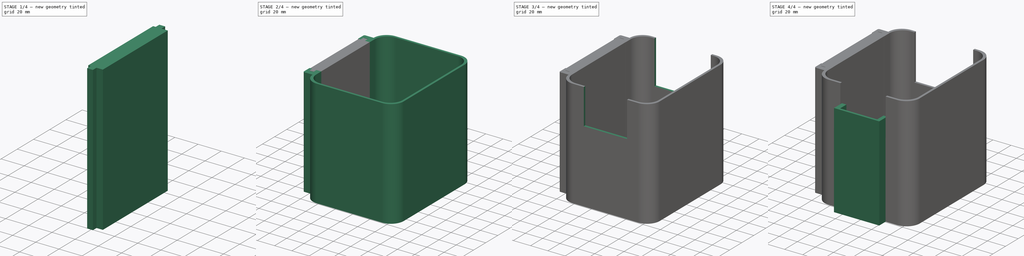
[diagram: build sequence overview — one tinted view per stage of 4, left to right]
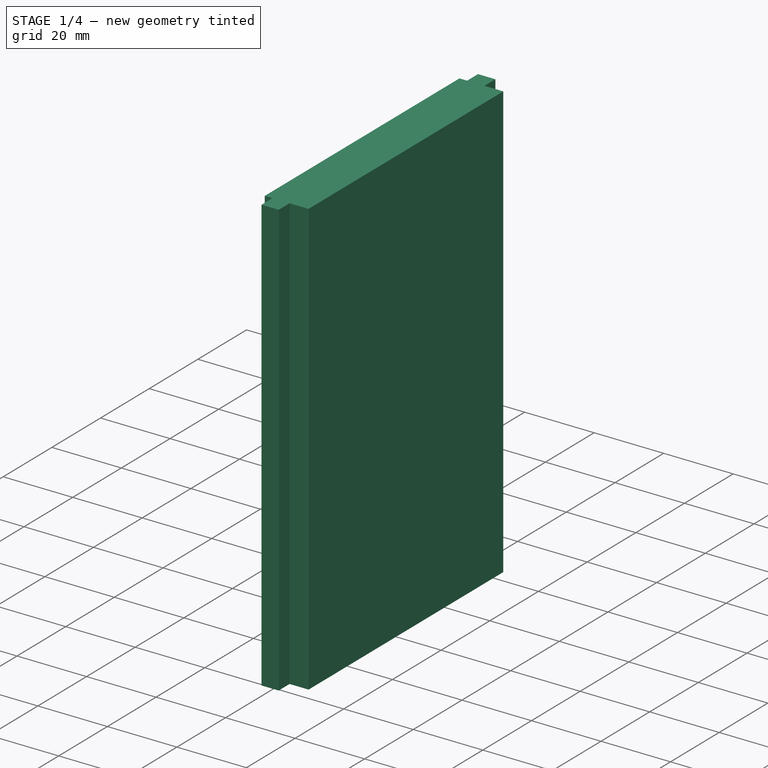
[diagram: stage 1 of 4 — iso view after this stage's code; geometry added in this stage tinted green]
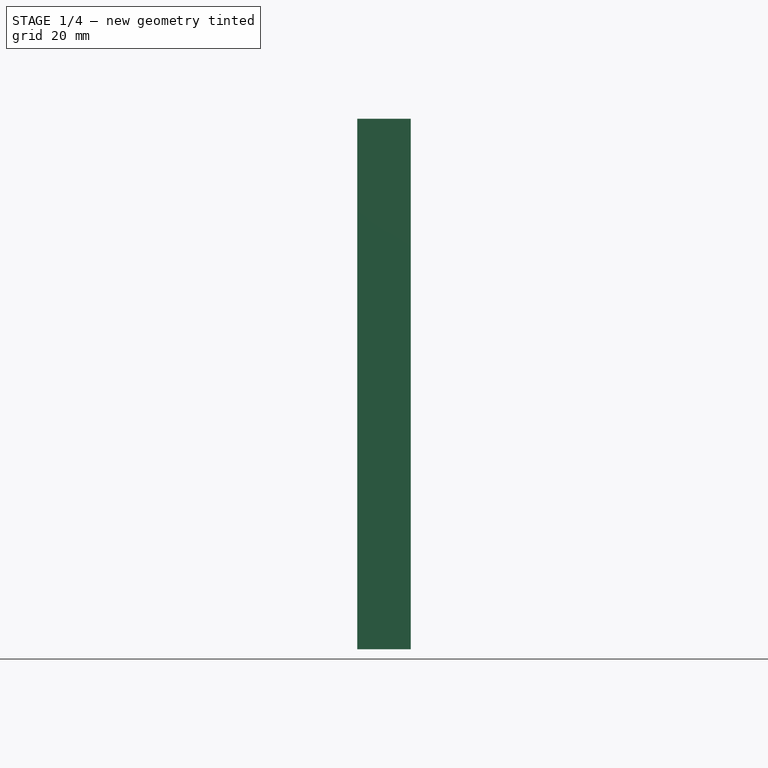
[diagram: stage 1 of 4 — front view after this stage's code; geometry added in this stage tinted green]
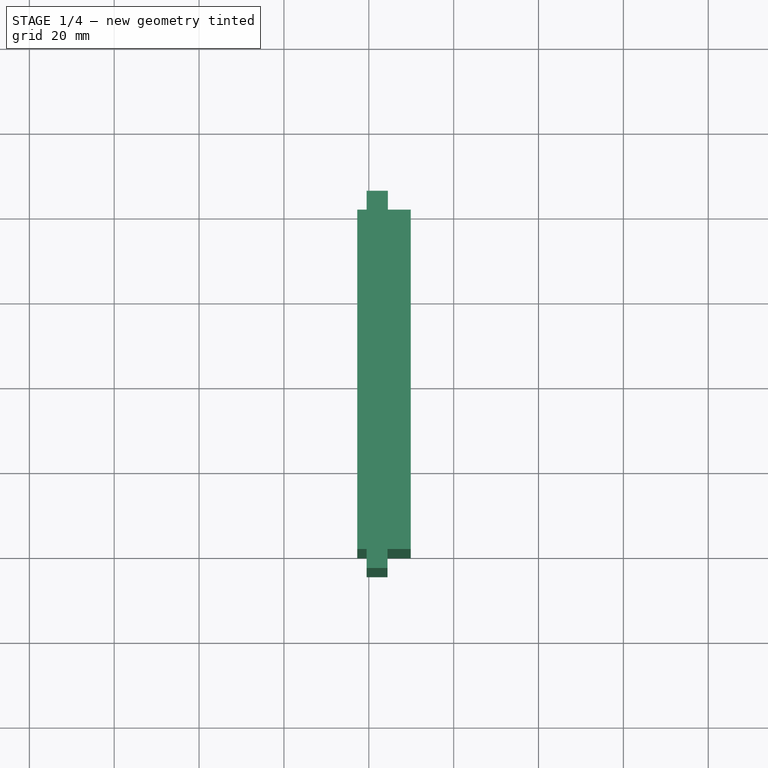
[diagram: stage 1 of 4 — top view after this stage's code; geometry added in this stage tinted green]
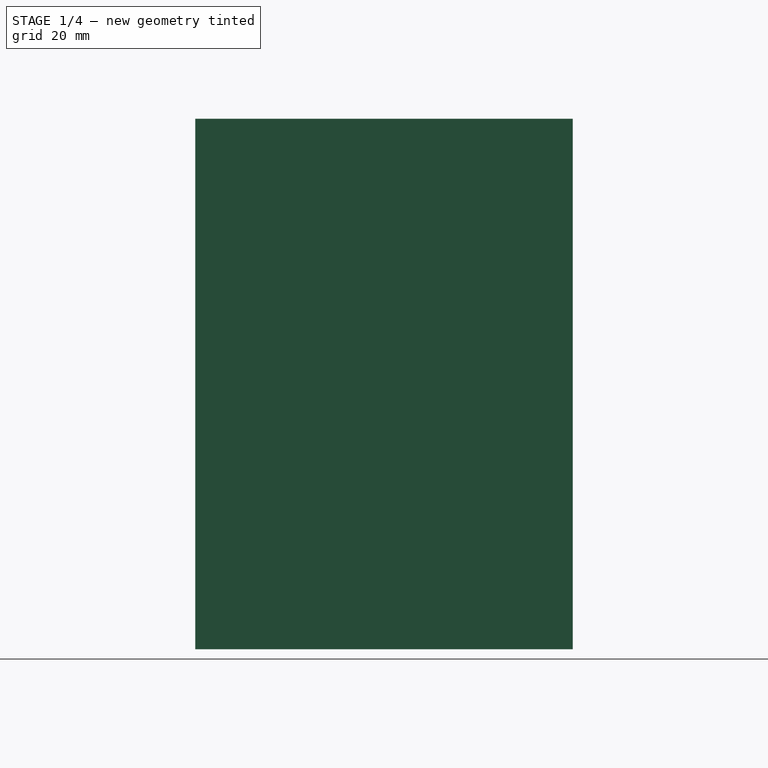
[diagram: stage 1 of 4 — right view after this stage's code; geometry added in this stage tinted green]
FCSTD DOCUMENT  (FreeCAD 1.0R39109 (Git))
Label: protection of reactor+fan_v2
License: All rights reserved
LicenseURL: http://en.wikipedia.org/wiki/All_rights_reserved
objects: Sketcher::SketchObject×9, PartDesign::Pad×5, PartDesign::Pocket×4, PartDesign::Body×2, Part::Feature×2, Part::Refine×1, Part::FeaturePython×1
note: 51 computed .brp shape members not serialized (recipe doc carries the construction recipe); baked Part::Feature solids carry a one-line shape summary decoded from their .brp

FEATURE [PartDesign::Body] Body
  AllowCompound = false
  Group = -> [Sketch,Pad,Sketch001,Pad001,Sketch002,Pocket,Sketch003,Pocket001,Sketch005,Pocket002,Sketch006,Pocket003,Sketch007,Pad003,Sketch009,Pad004]
  Origin = -> Origin
  Tip = -> Pad004
FEATURE [Part::Feature] Body002
  shape: bbox 116 x 140 x 125 mm, 88 faces (baked)
FEATURE [Part::Refine] Body003
  Source = -> Body002
FEATURE [Sketcher::SketchObject] Sketch010
  ArcFitTolerance = 1e-06
  AttachmentSupport = -> [XY_Plane001]
  FullyConstrained = false
  MakeInternals = false
  MapMode = 5
  sketch-geometry (4):
    g0: LineSegment StartX=-62.7297 StartY=44.4648 StartZ=0 EndX=-62.7297 EndY=-44.4755 EndZ=0
    g1: LineSegment StartX=-62.7297 StartY=-44.4755 StartZ=0 EndX=-50.1092 EndY=-44.4755 EndZ=0
    g2: LineSegment StartX=-50.1092 StartY=-44.4755 StartZ=0 EndX=-50.1092 EndY=44.4648 EndZ=0
    g3: LineSegment StartX=-50.1092 StartY=44.4648 StartZ=0 EndX=-62.7297 EndY=44.4648 EndZ=0
  constraints (8):
    c: Coincident(g0,g1)
    c: Coincident(g1,g2)
    c: Coincident(g2,g3)
    c: Coincident(g3,g0)
    c: Vertical(g0)
    c: Vertical(g2)
    c: Horizontal(g1)
    c: Horizontal(g3)
FEATURE [PartDesign::Pad] Pad005
  Direction = (0,0,1)
  Length = 125
  Length2 = 10
  Profile = -> Sketch010
  ReferenceAxis = -> Sketch010 [N_Axis]
  Suppressed = false
  Type = 0
FEATURE [PartDesign::Body] Body004
  AllowCompound = false
  Group = -> [Sketch010,Pad005]
  Origin = -> Origin001
  Tip = -> Pad005
FEATURE [Part::Feature] Body005
  shape: bbox 116 x 140 x 125 mm, 81 faces (baked)
FEATURE [Part::FeaturePython] Cutout  # WARN: FeaturePython — macro-defined, semantics opaque (R4)
  Base = -> Body004
  Tolerance = 0
  Tool = -> Body005
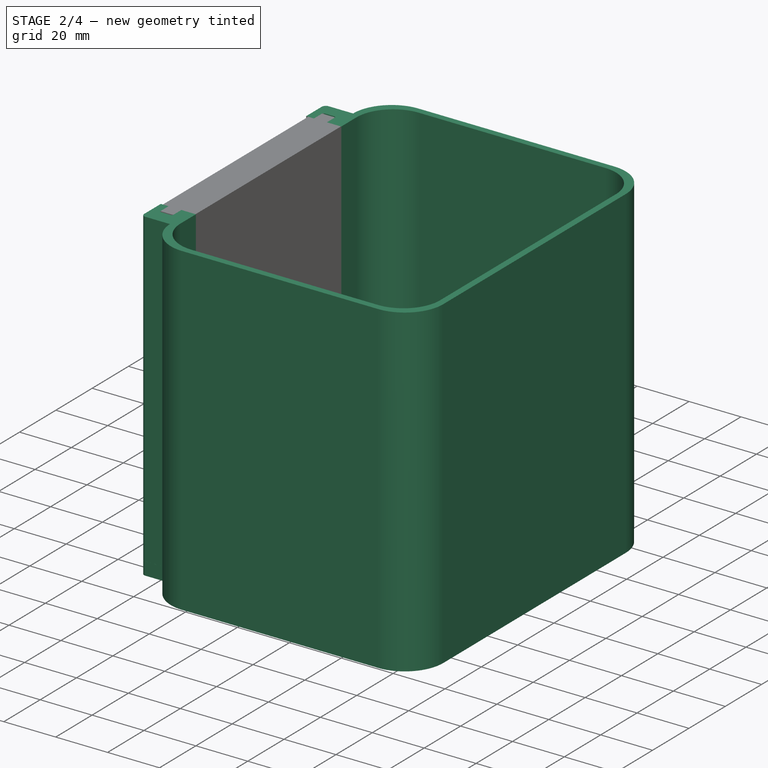
[diagram: stage 2 of 4 — iso view after this stage's code; geometry added in this stage tinted green]
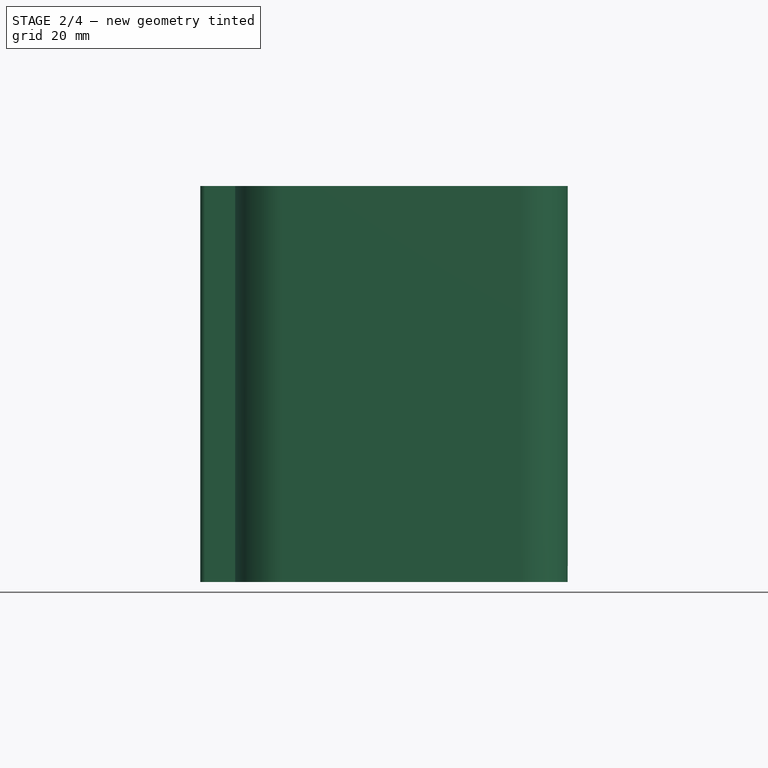
[diagram: stage 2 of 4 — front view after this stage's code; geometry added in this stage tinted green]
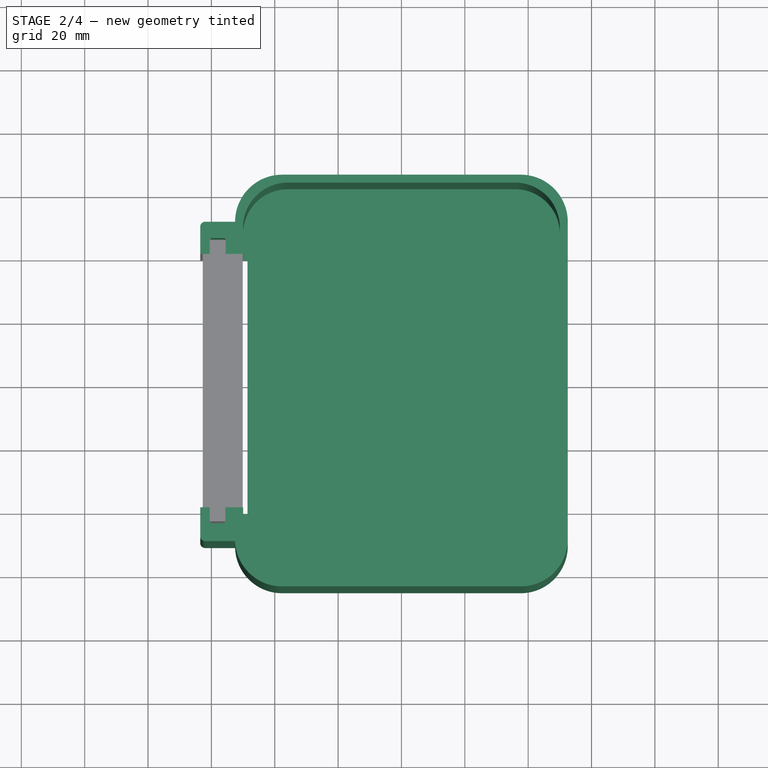
[diagram: stage 2 of 4 — top view after this stage's code; geometry added in this stage tinted green]
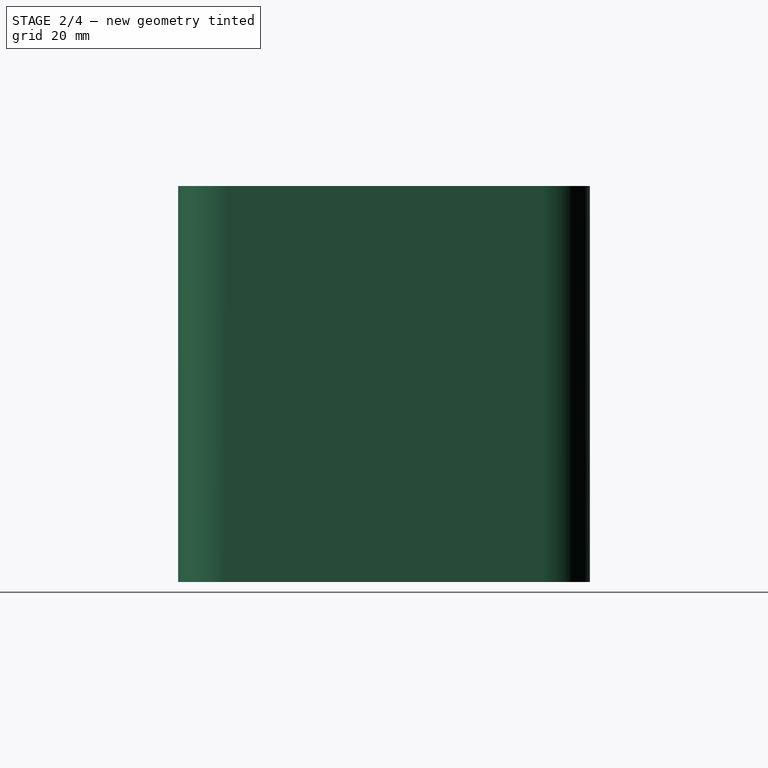
[diagram: stage 2 of 4 — right view after this stage's code; geometry added in this stage tinted green]
FEATURE [Sketcher::SketchObject] Sketch
  ArcFitTolerance = 1e-06
  AttachmentSupport = -> [XY_Plane]
  FullyConstrained = false
  MakeInternals = false
  MapMode = 5
  sketch-geometry (15):
    g0: LineSegment StartX=-37.7004 StartY=-64.9761 StartZ=0 EndX=37.6459 EndY=-64.9761 EndZ=0
    g1: LineSegment StartX=52.476 StartY=-50.146 StartZ=0 EndX=52.476 EndY=50.1446 EndZ=0
    g2: LineSegment StartX=37.6459 StartY=64.9748 StartZ=0 EndX=-37.6896 EndY=64.9748 EndZ=0
    g3: GeomPoint [constr] X=0 Y=0 Z=0
    g4: ArcOfCircle CenterX=-37.6896 CenterY=50.1446 CenterZ=0 NormalX=0 NormalY=0 NormalZ=1 AngleXU=0 Radius=14.8301 StartAngle=1.5708 EndAngle=3.14118
    g5: ArcOfCircle CenterX=37.6459 CenterY=50.1446 CenterZ=0 NormalX=0 NormalY=0 NormalZ=1 AngleXU=0 Radius=14.8301 StartAngle=1e-16 EndAngle=1.5708
    g6: ArcOfCircle CenterX=37.6459 CenterY=-50.146 CenterZ=0 NormalX=0 NormalY=0 NormalZ=1 AngleXU=0 Radius=14.8301 StartAngle=4.71239 EndAngle=6.28319
    g7: ArcOfCircle CenterX=-37.7004 CenterY=-50.146 CenterZ=0 NormalX=0 NormalY=0 NormalZ=1 AngleXU=0 Radius=14.8301 StartAngle=3.17979 EndAngle=4.71239
    g8: LineSegment StartX=-52.5197 StartY=-50.7123 StartZ=0 EndX=-61.9641 EndY=-50.7123 EndZ=0
    g9: LineSegment StartX=-52.5197 StartY=50.1508 StartZ=0 EndX=-61.9641 EndY=50.1508 EndZ=0
    g10: LineSegment StartX=-63.5197 StartY=48.5951 StartZ=0 EndX=-63.5197 EndY=-49.1567 EndZ=0
    g11: ArcOfCircle CenterX=-61.9641 CenterY=48.5951 CenterZ=0 NormalX=0 NormalY=0 NormalZ=1 AngleXU=0 Radius=1.55564 StartAngle=1.5708 EndAngle=3.14159
    g12: GeomPoint [constr] X=-63.5197 Y=50.1508 Z=0
    g13: ArcOfCircle CenterX=-61.9641 CenterY=-49.1567 CenterZ=0 NormalX=0 NormalY=0 NormalZ=1 AngleXU=0 Radius=1.55564 StartAngle=3.14159 EndAngle=4.71239
    g14: GeomPoint [constr] X=-63.5197 Y=-50.7123 Z=0
  constraints (29):
    c: Horizontal(g0)
    c: Horizontal(g2)
    c: Vertical(g1)
    c: Coincident(g3,g-1)
    c: Tangent(g2,g4) = -1.5708
    c: Tangent(g1,g5) = -1.5708
    c: Tangent(g2,g5) = -1.5708
    c: Tangent(g0,g6) = -1.5708
    c: Tangent(g1,g6) = -1.5708
    c: Tangent(g0,g7) = -1.5708
    c: Equal(g4,g5)
    c: Equal(g5,g6)
    c: Equal(g6,g7)
    c: Distance(g8,g14) = 11
    c: Horizontal(g8)
    c: Coincident(g8,g7)
    c: Distance(g9,g12) = 11
    c: Horizontal(g9)
    c: Coincident(g9,g4)
    c: Vertical(g10)
    c: PointOnObject(g12,g9)
    c: PointOnObject(g12,g10)
    c: Tangent(g9,g11) = -1.5708
    c: Tangent(g10,g11) = -1.5708
    c: PointOnObject(g14,g8)
    c: PointOnObject(g14,g10)
    c: Tangent(g8,g13) = 1.5708
    c: Tangent(g10,g13) = -1.5708
    c: Equal(g13,g11)
FEATURE [PartDesign::Pad] Pad
  Direction = (0,0,1)
  Length = 5
  Length2 = 10
  Profile = -> Sketch
  ReferenceAxis = -> Sketch [N_Axis]
  Suppressed = false
  Type = 0
FEATURE [Sketcher::SketchObject] Sketch001
  ArcFitTolerance = 1e-06
  AttachmentSupport = -> [Pad]
  FullyConstrained = false
  MakeInternals = false
  MapMode = 5
  Placement = pos=(0,0,5) rot=(0,0,1;0rad)
  sketch-geometry (32):
    g0: LineSegment StartX=-37.6728 StartY=-65 StartZ=0 EndX=37.6433 EndY=-65 EndZ=0
    g1: LineSegment StartX=52.5 StartY=-50.1433 StartZ=0 EndX=52.5 EndY=50.1433 EndZ=0
    g2: LineSegment StartX=37.6433 StartY=65 StartZ=0 EndX=-37.6628 EndY=65 EndZ=0
    g3: GeomPoint [constr] X=0 Y=0 Z=0
    g4: ArcOfCircle CenterX=37.6433 CenterY=50.1433 CenterZ=0 NormalX=0 NormalY=0 NormalZ=1 AngleXU=0 Radius=14.8567 StartAngle=0 EndAngle=1.5708
    g5: GeomPoint [constr] X=52.5 Y=65 Z=0
    g6: ArcOfCircle CenterX=-37.6628 CenterY=50.1433 CenterZ=0 NormalX=0 NormalY=0 NormalZ=1 AngleXU=0 Radius=14.8567 StartAngle=1.5708 EndAngle=3.14164
    g7: GeomPoint [constr] X=-52.5 Y=65 Z=0
    g8: ArcOfCircle CenterX=-37.6728 CenterY=-50.1433 CenterZ=0 NormalX=0 NormalY=0 NormalZ=1 AngleXU=0 Radius=14.8567 StartAngle=3.17845 EndAngle=4.71239
    g9: GeomPoint [constr] X=-52.5 Y=-65 Z=0
    g10: ArcOfCircle CenterX=37.6433 CenterY=-50.1433 CenterZ=0 NormalX=0 NormalY=0 NormalZ=1 AngleXU=0 Radius=14.8567 StartAngle=4.71239 EndAngle=6.28319
    g11: GeomPoint [constr] X=52.5 Y=-65 Z=0
    g12: LineSegment StartX=-35.8602 StartY=-62.5 StartZ=0 EndX=35.8602 EndY=-62.5 EndZ=0
    g13: LineSegment StartX=50 StartY=-48.3602 StartZ=0 EndX=50 EndY=48.3602 EndZ=0
    g14: LineSegment StartX=35.8602 StartY=62.5 StartZ=0 EndX=-35.8602 EndY=62.5 EndZ=0
    g15: GeomPoint [constr] X=0 Y=0 Z=0
    g16: ArcOfCircle CenterX=-35.8602 CenterY=48.3602 CenterZ=0 NormalX=0 NormalY=0 NormalZ=1 AngleXU=0 Radius=14.1398 StartAngle=1.5708 EndAngle=3.14159
    g17: GeomPoint [constr] X=-50 Y=62.5 Z=0
    g18: ArcOfCircle CenterX=35.8602 CenterY=48.3602 CenterZ=0 NormalX=0 NormalY=0 NormalZ=1 AngleXU=0 Radius=14.1398 StartAngle=1e-16 EndAngle=1.5708
    g19: GeomPoint [constr] X=50 Y=62.5 Z=0
    g20: ArcOfCircle CenterX=35.8602 CenterY=-48.3602 CenterZ=0 NormalX=0 NormalY=0 NormalZ=1 AngleXU=0 Radius=14.1398 StartAngle=4.71239 EndAngle=6.28319
    g21: GeomPoint [constr] X=50 Y=-62.5 Z=0
    g22: ArcOfCircle CenterX=-35.8602 CenterY=-48.3602 CenterZ=0 NormalX=0 NormalY=0 NormalZ=1 AngleXU=0 Radius=14.1398 StartAngle=3.14159 EndAngle=4.71239
    g23: GeomPoint [constr] X=-50 Y=-62.5 Z=0
    g24: LineSegment StartX=-52.5194 StartY=-50.6907 StartZ=0 EndX=-61.9674 EndY=-50.6907 EndZ=0
    g25: LineSegment StartX=-52.5194 StartY=50.1426 StartZ=0 EndX=-61.9674 EndY=50.1426 EndZ=0
    g26: LineSegment StartX=-50 StartY=48.3602 StartZ=0 EndX=-50 EndY=-48.3602 EndZ=0
    g27: LineSegment StartX=-63.5194 StartY=48.5905 StartZ=0 EndX=-63.5194 EndY=-49.1387 EndZ=0
    g28: ArcOfCircle CenterX=-61.9674 CenterY=-49.1387 CenterZ=0 NormalX=0 NormalY=0 NormalZ=1 AngleXU=0 Radius=1.55204 StartAngle=3.14159 EndAngle=4.71239
    g29: GeomPoint [constr] X=-63.5194 Y=-50.6907 Z=0
    g30: ArcOfCircle CenterX=-61.9674 CenterY=48.5905 CenterZ=0 NormalX=0 NormalY=0 NormalZ=1 AngleXU=0 Radius=1.55204 StartAngle=1.5708 EndAngle=3.14159
    g31: GeomPoint [constr] X=-63.5194 Y=50.1426 Z=0
  constraints (63):
    c: Horizontal(g0)
    c: Horizontal(g2)
    c: Vertical(g1)
    c: Symmetric(g5,g9,g3)
    c: Distance(g11,g9) = 105
    c: Distance(g9,g7) = 130
    c: Coincident(g3,g-1)
    c: PointOnObject(g5,g1)
    c: PointOnObject(g5,g2)
    c: Tangent(g1,g4) = -1.5708
    c: Tangent(g2,g4) = -1.5708
    c: PointOnObject(g7,g2)
    c: Tangent(g2,g6) = -1.5708
    c: PointOnObject(g9,g0)
    c: Tangent(g0,g8) = -1.5708
    c: PointOnObject(g11,g0)
    c: PointOnObject(g11,g1)
    c: Tangent(g0,g10) = -1.5708
    c: Tangent(g1,g10) = -1.5708
    c: Equal(g10,g4)
    c: Equal(g4,g6)
    c: Equal(g6,g8)
    c: Horizontal(g12)
    c: Horizontal(g14)
    c: Vertical(g13)
    c: Symmetric(g19,g23,g15)
    c: Distance(g21,g23) = 100
    c: Distance(g23,g17) = 125
    c: Coincident(g15,g3)
    c: PointOnObject(g17,g14)
    c: Tangent(g14,g16) = -1.5708
    c: PointOnObject(g19,g13)
    c: PointOnObject(g19,g14)
    c: Tangent(g13,g18) = -1.5708
    c: Tangent(g14,g18) = -1.5708
    c: PointOnObject(g21,g12)
    c: PointOnObject(g21,g13)
    c: Tangent(g12,g20) = -1.5708
    c: Tangent(g13,g20) = -1.5708
    c: PointOnObject(g23,g12)
    c: Tangent(g12,g22) = -1.5708
    c: Equal(g16,g18)
    c: Equal(g18,g20)
    c: Equal(g20,g22)
    c: Distance(g24,g29) = 11
    c: Horizontal(g24)
    c: Coincident(g24,g8)
    c: Distance(g25,g31) = 11
    c: Horizontal(g25)
    c: Coincident(g25,g6)
    c: Coincident(g26,g16)
    c: Coincident(g26,g22)
    c: Vertical(g26)
    c: Vertical(g27)
    c: PointOnObject(g29,g24)
    c: PointOnObject(g29,g27)
    c: Tangent(g24,g28) = 1.5708
    c: Tangent(g27,g28) = -1.5708
    c: PointOnObject(g31,g25)
    c: PointOnObject(g31,g27)
    c: Tangent(g25,g30) = -1.5708
    c: Tangent(g27,g30) = -1.5708
    c: Equal(g30,g28)
FEATURE [PartDesign::Pad] Pad001
  BaseFeature = -> Pad
  Direction = (0,0,1)
  Length = 120
  Length2 = 10
  Profile = -> Sketch001
  ReferenceAxis = -> Sketch001 [N_Axis]
  Suppressed = false
  Type = 0
FEATURE [Sketcher::SketchObject] Sketch002
  ArcFitTolerance = 1e-06
  AttachmentSupport = -> [Pad001]
  ExternalGeometry = -> [Pad001]
  FullyConstrained = false
  MakeInternals = false
  MapMode = 5
  Placement = pos=(0,0,0) rot=(1,0,0;3.14159rad)
  sketch-geometry (20):
    g0: LineSegment StartX=-63.5197 StartY=40 StartZ=0 EndX=-63.5197 EndY=-40 EndZ=0
    g1: LineSegment StartX=-63.5197 StartY=40 StartZ=0 EndX=-60.5197 EndY=40 EndZ=0
    g2: LineSegment StartX=-60.5197 StartY=40 StartZ=0 EndX=-60.5197 EndY=44.3452 EndZ=0
    g3: LineSegment StartX=-59.8649 StartY=45 StartZ=0 EndX=-56.2484 EndY=45 EndZ=0
    g4: LineSegment StartX=-55.5936 StartY=44.3452 StartZ=0 EndX=-55.5936 EndY=40.0005 EndZ=0
    g5: LineSegment StartX=-55.5936 StartY=40.0005 StartZ=0 EndX=-48.5936 EndY=40.0005 EndZ=0
    g6: LineSegment StartX=-63.5197 StartY=-40 StartZ=0 EndX=-60.5197 EndY=-40 EndZ=0
    g7: LineSegment StartX=-60.5197 StartY=-40 StartZ=0 EndX=-60.5197 EndY=-44.3455 EndZ=0
    g8: LineSegment StartX=-59.8649 StartY=-45.0003 StartZ=0 EndX=-56.1745 EndY=-45.0003 EndZ=0
    g9: LineSegment StartX=-55.5197 StartY=-44.3455 StartZ=0 EndX=-55.5197 EndY=-40 EndZ=0
    g10: LineSegment StartX=-55.5197 StartY=-40 StartZ=0 EndX=-48.5936 EndY=-40 EndZ=0
    g11: LineSegment StartX=-48.5936 StartY=-40 StartZ=0 EndX=-48.5936 EndY=40.0005 EndZ=0
    g12: ArcOfCircle CenterX=-59.8649 CenterY=-44.3455 CenterZ=0 NormalX=0 NormalY=0 NormalZ=1 AngleXU=0 Radius=0.654778 StartAngle=3.14159 EndAngle=4.71239
    g13: GeomPoint [constr] X=-60.5197 Y=-45.0003 Z=0
    g14: ArcOfCircle CenterX=-56.1745 CenterY=-44.3455 CenterZ=0 NormalX=0 NormalY=0 NormalZ=1 AngleXU=0 Radius=0.654778 StartAngle=4.71239 EndAngle=6.28319
    g15: GeomPoint [constr] X=-55.5197 Y=-45.0003 Z=0
    g16: ArcOfCircle CenterX=-59.8649 CenterY=44.3452 CenterZ=0 NormalX=0 NormalY=0 NormalZ=1 AngleXU=0 Radius=0.654778 StartAngle=1.5708 EndAngle=3.14159
    g17: GeomPoint [constr] X=-60.5197 Y=45 Z=0
    g18: ArcOfCircle CenterX=-56.2484 CenterY=44.3452 CenterZ=0 NormalX=0 NormalY=0 NormalZ=1 AngleXU=0 Radius=0.654778 StartAngle=1.5e-15 EndAngle=1.5708
    g19: GeomPoint [constr] X=-55.5197 Y=45 Z=0
  constraints (47):
    c: Distance(g0) = 80
    c: PointOnObject(g0,g-5)
    c: Symmetric(g0,g0,g-1)
    c: Distance(g1) = 3
    c: Coincident(g1,g0)
    c: Horizontal(g1)
    c: Distance(g2,g17) = 5
    c: Coincident(g2,g1)
    c: Vertical(g2)
    c: Distance(g19,g17) = 5
    c: Horizontal(g3)
    c: Distance(g4,g19) = 5
    c: Vertical(g4)
    c: Distance(g5) = 7
    c: Coincident(g5,g4)
    c: Horizontal(g5)
    c: Distance(g6) = 3
    c: Horizontal(g6)
    c: Coincident(g7,g6)
    c: Vertical(g7)
    c: Distance(g15,g13) = 5
    c: Horizontal(g8)
    c: Vertical(g9)
    c: Coincident(g10,g9)
    c: Horizontal(g10)
    c: Coincident(g11,g10)
    c: Coincident(g11,g5)
    c: Vertical(g11)
    c: PointOnObject(g13,g7)
    c: PointOnObject(g13,g8)
    c: Tangent(g7,g12) = -1.5708
    c: Tangent(g8,g12) = -1.5708
    c: PointOnObject(g15,g8)
    c: PointOnObject(g15,g9)
    c: Tangent(g8,g14) = -1.5708
    c: Tangent(g9,g14) = -1.5708
    c: PointOnObject(g17,g2)
    c: PointOnObject(g17,g3)
    c: Tangent(g2,g16) = 1.5708
    c: Tangent(g3,g16) = 1.5708
    c: PointOnObject(g19,g3)
    c: Tangent(g3,g18) = 1.5708
    c: Tangent(g4,g18) = 1.5708
    c: Equal(g16,g18)
    c: Equal(g18,g12)
    c: Equal(g12,g14)
    c: Coincident(g6,g0)
FEATURE [PartDesign::Pocket] Pocket
  BaseFeature = -> Pad001
  Direction = (0,0,1)
  Length = 125
  Length2 = 5
  Profile = -> Sketch002
  ReferenceAxis = -> Sketch002 [N_Axis]
  Suppressed = false
  Type = 0
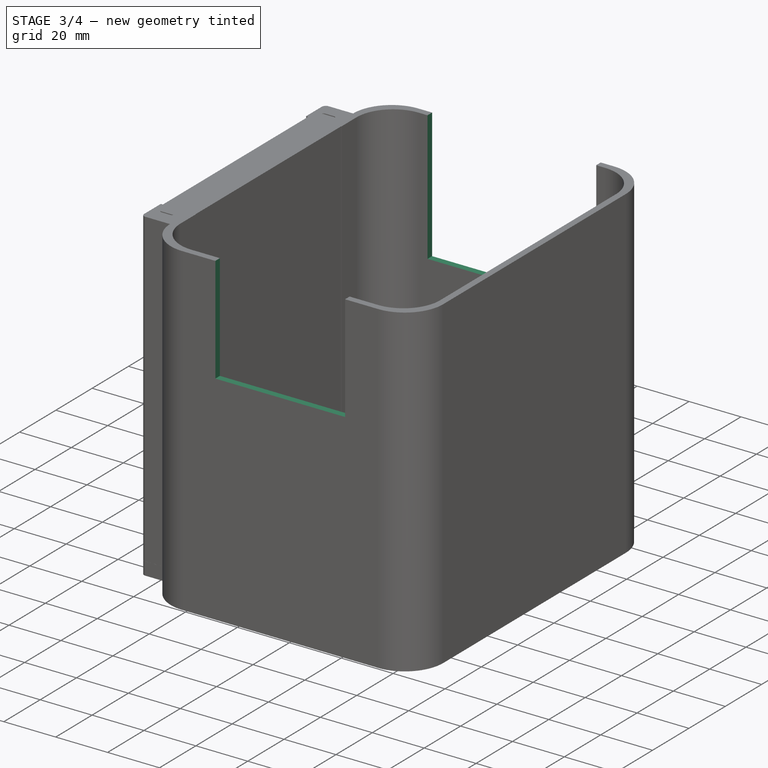
[diagram: stage 3 of 4 — iso view after this stage's code; geometry added in this stage tinted green]
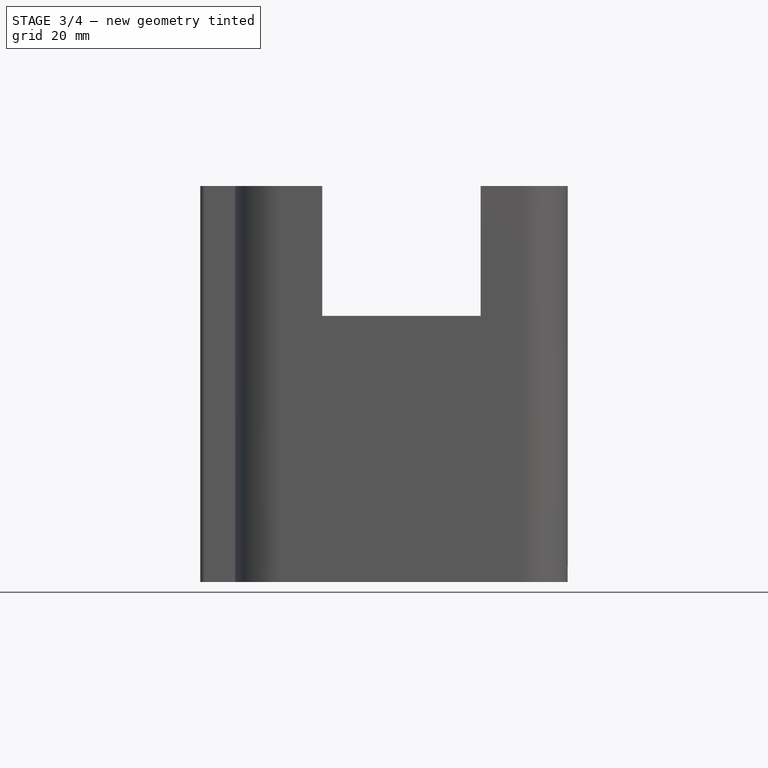
[diagram: stage 3 of 4 — front view after this stage's code; geometry added in this stage tinted green]
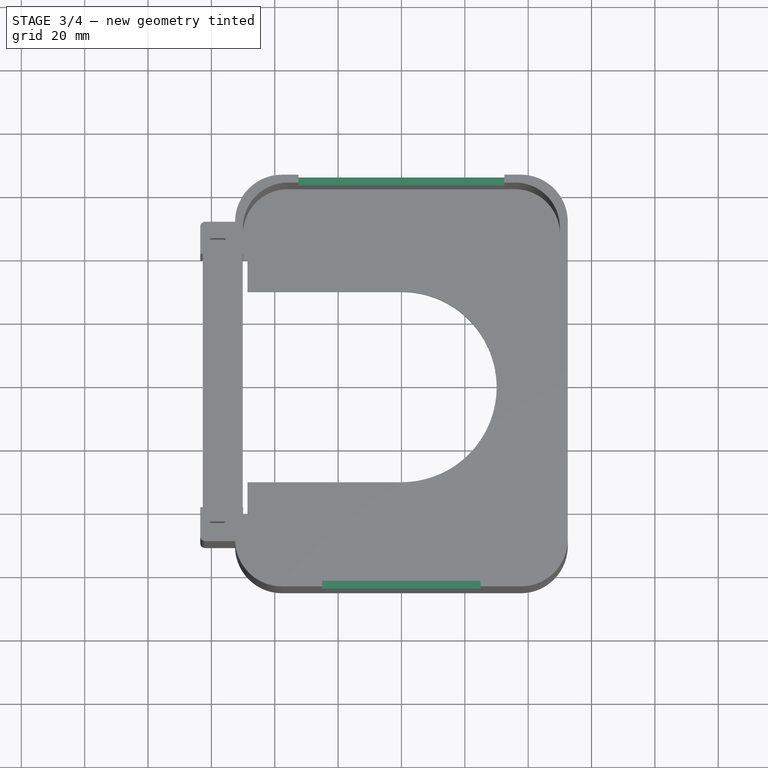
[diagram: stage 3 of 4 — top view after this stage's code; geometry added in this stage tinted green]
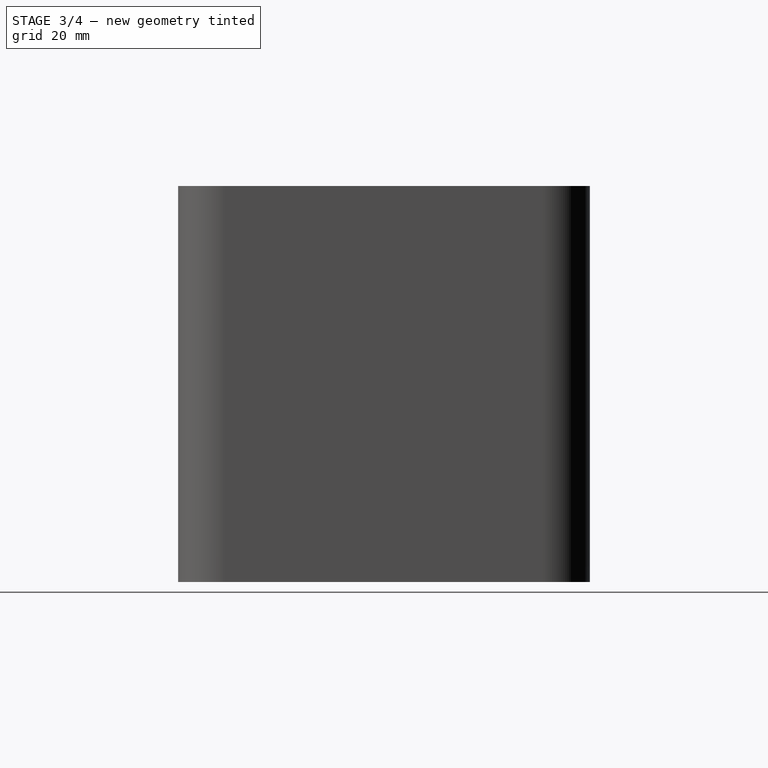
[diagram: stage 3 of 4 — right view after this stage's code; geometry added in this stage tinted green]
FEATURE [Sketcher::SketchObject] Sketch003
  ArcFitTolerance = 1e-06
  AttachmentSupport = -> [Pocket]
  FullyConstrained = false
  MakeInternals = false
  MapMode = 5
  Placement = pos=(0,0,0) rot=(1,0,0;3.14159rad)
  sketch-geometry (4):
    g0: ArcOfCircle CenterX=-0.00316365 CenterY=-0.0489095 CenterZ=0 NormalX=0 NormalY=0 NormalZ=1 AngleXU=0 Radius=30.0503 StartAngle=4.71249 EndAngle=7.85388
    g1: LineSegment StartX=-4e-15 StartY=30.0014 StartZ=0 EndX=-50 EndY=30.0014 EndZ=0
    g2: LineSegment StartX=8e-15 StartY=-30.0992 StartZ=0 EndX=-50 EndY=-30.0992 EndZ=0
    g3: LineSegment StartX=-50 StartY=-30.0992 StartZ=0 EndX=-50 EndY=30.0014 EndZ=0
  constraints (10):
    c: PointOnObject(g1,g-2)
    c: PointOnObject(g2,g-2)
    c: Distance(g1) = 50
    c: Horizontal(g1)
    c: Distance(g2) = 50
    c: Horizontal(g2)
    c: Coincident(g3,g2)
    c: Coincident(g3,g1)
    c: Coincident(g0,g1)
    c: Coincident(g0,g2)
FEATURE [PartDesign::Pocket] Pocket001
  BaseFeature = -> Pocket
  Direction = (0,0,1)
  Length = 5
  Length2 = 5
  Profile = -> Sketch003
  ReferenceAxis = -> Sketch003 [N_Axis]
  Suppressed = false
  Type = 0
FEATURE [Sketcher::SketchObject] Sketch005
  ArcFitTolerance = 1e-06
  AttachmentSupport = -> [Pocket001]
  FullyConstrained = false
  MakeInternals = false
  MapMode = 5
  Placement = pos=(0,0,125) rot=(0,0,1;0rad)
  sketch-geometry (5):
    g0: LineSegment StartX=-32.5 StartY=58.3703 StartZ=0 EndX=32.5 EndY=58.3703 EndZ=0
    g1: LineSegment StartX=32.5 StartY=58.3703 StartZ=0 EndX=32.5 EndY=72.4513 EndZ=0
    g2: LineSegment StartX=32.5 StartY=72.4513 StartZ=0 EndX=-32.5 EndY=72.4513 EndZ=0
    g3: LineSegment StartX=-32.5 StartY=72.4513 StartZ=0 EndX=-32.5 EndY=58.3703 EndZ=0
    g4: GeomPoint [constr] X=0 Y=65.4108 Z=0
  constraints (11):
    c: Coincident(g0,g1)
    c: Coincident(g1,g2)
    c: Coincident(g2,g3)
    c: Coincident(g3,g0)
    c: Horizontal(g0)
    c: Horizontal(g2)
    c: Vertical(g1)
    c: Vertical(g3)
    c: Symmetric(g2,g0,g4)
    c: Distance(g1,g3) = 65
    c: PointOnObject(g4,g-2)
FEATURE [PartDesign::Pocket] Pocket002
  BaseFeature = -> Pocket001
  Direction = (0,0,-1)
  Length = 50
  Length2 = 5
  Profile = -> Sketch005
  ReferenceAxis = -> Sketch005 [N_Axis]
  Suppressed = false
  Type = 0
FEATURE [Sketcher::SketchObject] Sketch006
  ArcFitTolerance = 1e-06
  AttachmentSupport = -> [Pocket002]
  FullyConstrained = false
  MakeInternals = false
  MapMode = 5
  Placement = pos=(0,0,125) rot=(0,0,1;0rad)
  sketch-geometry (5):
    g0: LineSegment StartX=-25 StartY=-69.8124 StartZ=0 EndX=25 EndY=-69.8124 EndZ=0
    g1: LineSegment StartX=25 StartY=-69.8124 StartZ=0 EndX=25 EndY=-57.0238 EndZ=0
    g2: LineSegment StartX=25 StartY=-57.0238 StartZ=0 EndX=-25 EndY=-57.0238 EndZ=0
    g3: LineSegment StartX=-25 StartY=-57.0238 StartZ=0 EndX=-25 EndY=-69.8124 EndZ=0
    g4: GeomPoint [constr] X=-1e-16 Y=-63.4181 Z=0
  constraints (11):
    c: Coincident(g0,g1)
    c: Coincident(g1,g2)
    c: Coincident(g2,g3)
    c: Coincident(g3,g0)
    c: Horizontal(g0)
    c: Horizontal(g2)
    c: Vertical(g1)
    c: Vertical(g3)
    c: Symmetric(g2,g0,g4)
    c: Distance(g1,g3) = 50
    c: PointOnObject(g4,g-2)
FEATURE [PartDesign::Pocket] Pocket003
  BaseFeature = -> Pocket002
  Direction = (0,0,-1)
  Length = 41
  Length2 = 5
  Profile = -> Sketch006
  ReferenceAxis = -> Sketch006 [N_Axis]
  Suppressed = false
  Type = 0
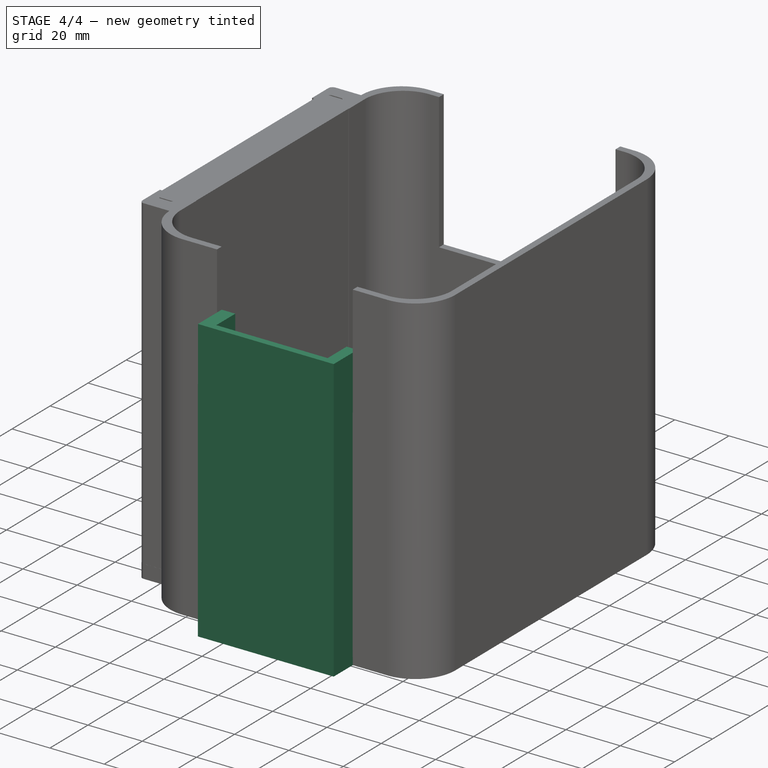
[diagram: stage 4 of 4 — iso view after this stage's code; geometry added in this stage tinted green]
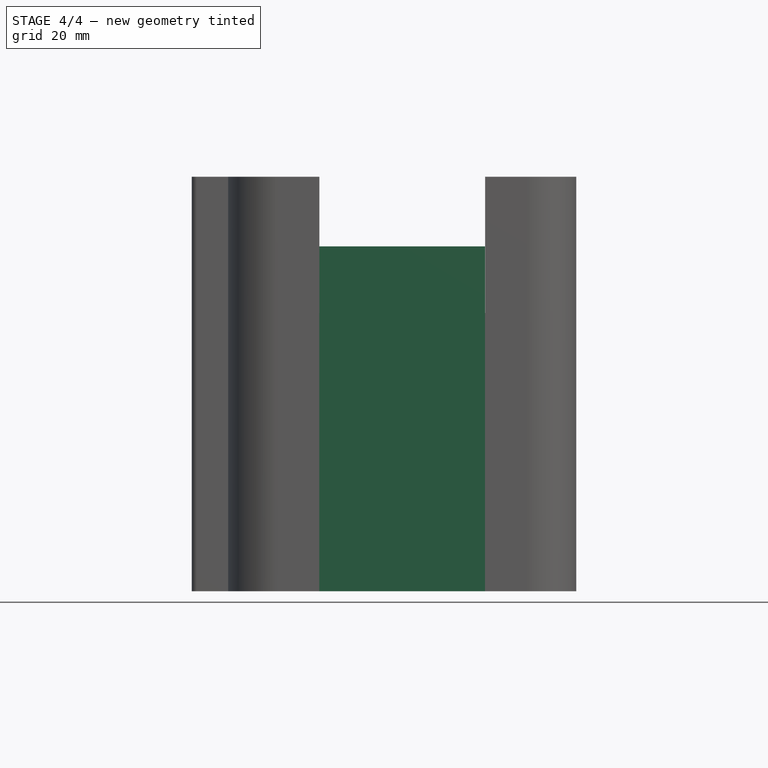
[diagram: stage 4 of 4 — front view after this stage's code; geometry added in this stage tinted green]
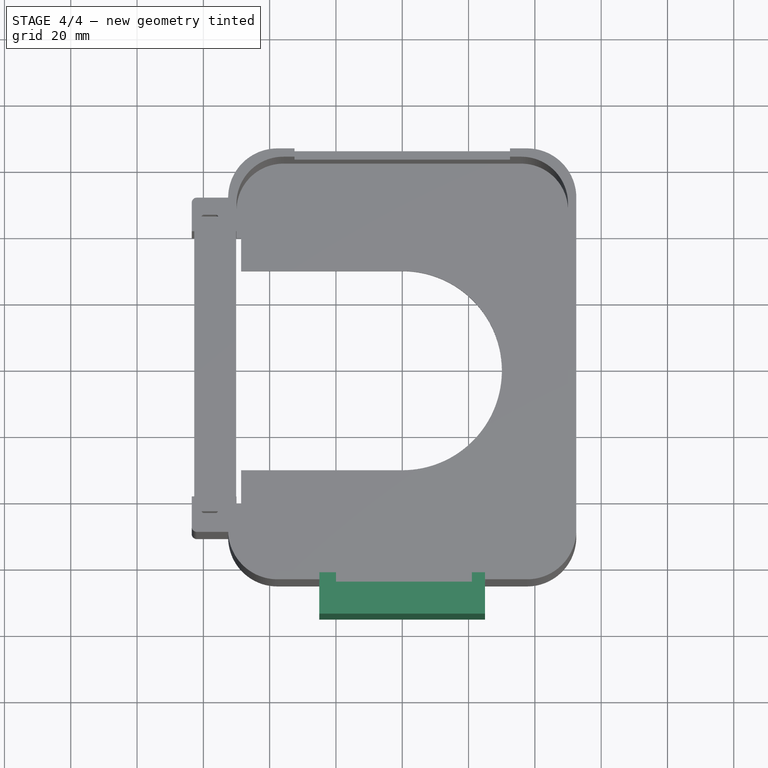
[diagram: stage 4 of 4 — top view after this stage's code; geometry added in this stage tinted green]
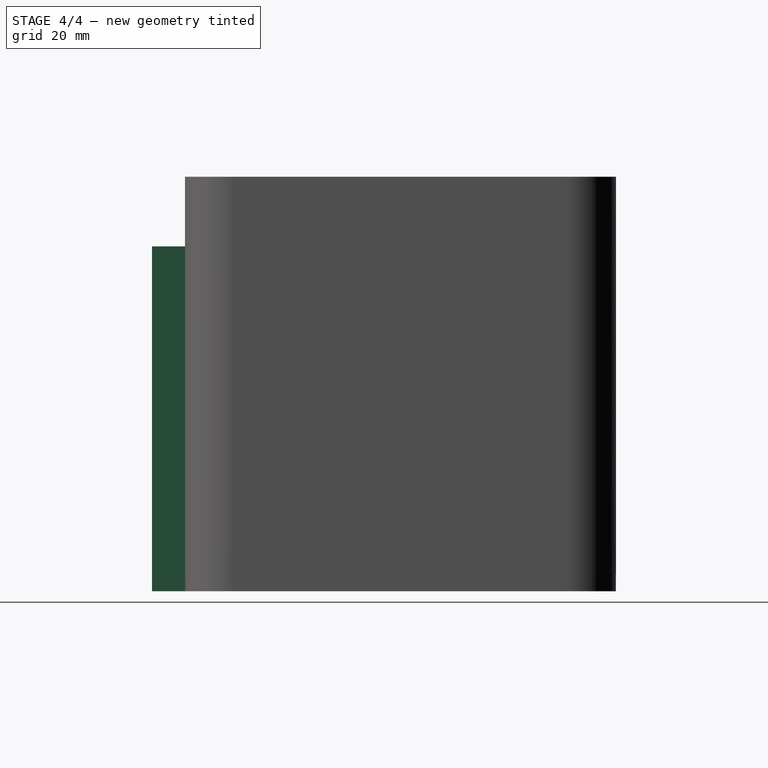
[diagram: stage 4 of 4 — right view after this stage's code; geometry added in this stage tinted green]
FEATURE [Sketcher::SketchObject] Sketch007
  ArcFitTolerance = 1e-06
  AttachmentSupport = -> [Pocket003]
  ExternalGeometry = -> [Pocket003]
  FullyConstrained = true
  MakeInternals = false
  MapMode = 5
  Placement = pos=(0,0,0) rot=(1,0,0;3.14159rad)
  sketch-geometry (5):
    g0: LineSegment StartX=-0.0272609 StartY=64.9761 StartZ=0 EndX=-25.0273 EndY=64.9761 EndZ=0
    g1: LineSegment StartX=-0.0272609 StartY=64.9761 StartZ=0 EndX=24.9727 EndY=64.9761 EndZ=0
    g2: LineSegment StartX=-25.0273 StartY=64.9761 StartZ=0 EndX=-25.0273 EndY=74.9761 EndZ=0
    g3: LineSegment StartX=24.9727 StartY=64.9761 StartZ=0 EndX=24.9727 EndY=74.9761 EndZ=0
    g4: LineSegment StartX=24.9727 StartY=74.9761 StartZ=0 EndX=-25.0273 EndY=74.9761 EndZ=0
  constraints (14):
    c: Distance(g0) = 25
    c: Symmetric(g-3,g-3,g0)
    c: PointOnObject(g0,g-3)
    c: Distance(g1) = 25
    c: Coincident(g1,g0)
    c: PointOnObject(g1,g-3)
    c: Distance(g2) = 10
    c: Coincident(g2,g0)
    c: Vertical(g2)
    c: Distance(g3) = 10
    c: Coincident(g3,g1)
    c: Vertical(g3)
    c: Coincident(g4,g3)
    c: Coincident(g4,g2)
FEATURE [PartDesign::Pad] Pad003
  BaseFeature = -> Pocket003
  Direction = (0,0,-1)
  Length = 84
  Length2 = 10
  Profile = -> Sketch007
  ReferenceAxis = -> Sketch007 [N_Axis]
  Reversed = true
  Suppressed = false
  Type = 0
FEATURE [Sketcher::SketchObject] Sketch009
  ArcFitTolerance = 1e-06
  AttachmentSupport = -> [Pad003]
  ExternalGeometry = -> [Pad003]
  FullyConstrained = false
  MakeInternals = false
  MapMode = 5
  Placement = pos=(0,0,84) rot=(0,0,1;0rad)
  sketch-geometry (8):
    g0: LineSegment StartX=-25 StartY=-62.5 StartZ=0 EndX=-25 EndY=-74.9761 EndZ=0
    g1: LineSegment StartX=-25 StartY=-74.9761 StartZ=0 EndX=24.9727 EndY=-74.9761 EndZ=0
    g2: LineSegment StartX=24.9727 StartY=-74.9761 StartZ=0 EndX=24.9727 EndY=-62.5 EndZ=0
    g3: LineSegment StartX=-25 StartY=-62.5 StartZ=0 EndX=-20 EndY=-62.5 EndZ=0
    g4: LineSegment StartX=-20 StartY=-62.5 StartZ=0 EndX=-20 EndY=-72.5 EndZ=0
    g5: LineSegment StartX=-20 StartY=-72.5 StartZ=0 EndX=21 EndY=-72.5 EndZ=0
    g6: LineSegment StartX=21 StartY=-72.5 StartZ=0 EndX=21 EndY=-62.5 EndZ=0
    g7: LineSegment StartX=21 StartY=-62.5 StartZ=0 EndX=24.9727 EndY=-62.5 EndZ=0
  constraints (21):
    c: Coincident(g0,g1)
    c: Coincident(g1,g2)
    c: Vertical(g0)
    c: Vertical(g2)
    c: Horizontal(g1)
    c: Coincident(g0,g-3)
    c: Coincident(g1,g-5)
    c: Distance(g3) = 5
    c: Coincident(g3,g0)
    c: PointOnObject(g3,g-3)
    c: Distance(g4) = 10
    c: Coincident(g4,g3)
    c: Vertical(g4)
    c: Distance(g5) = 41
    c: Horizontal(g5)
    c: Vertical(g6)
    c: Coincident(g6,g5)
    c: PointOnObject(g6,g-3)
    c: Coincident(g7,g6)
    c: Coincident(g7,g2)
    c: Horizontal(g7)
FEATURE [PartDesign::Pad] Pad004
  BaseFeature = -> Pad003
  Direction = (0,0,1)
  Length = 20
  Length2 = 10
  Profile = -> Sketch009
  ReferenceAxis = -> Sketch009 [N_Axis]
  Suppressed = false
  Type = 0
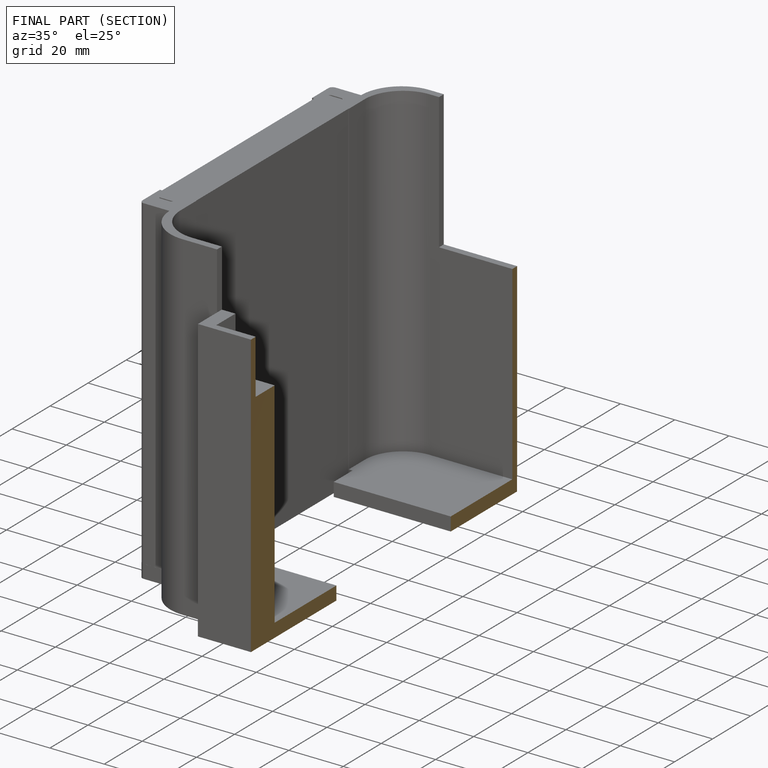
[diagram: finished part — half-section view (interior)]
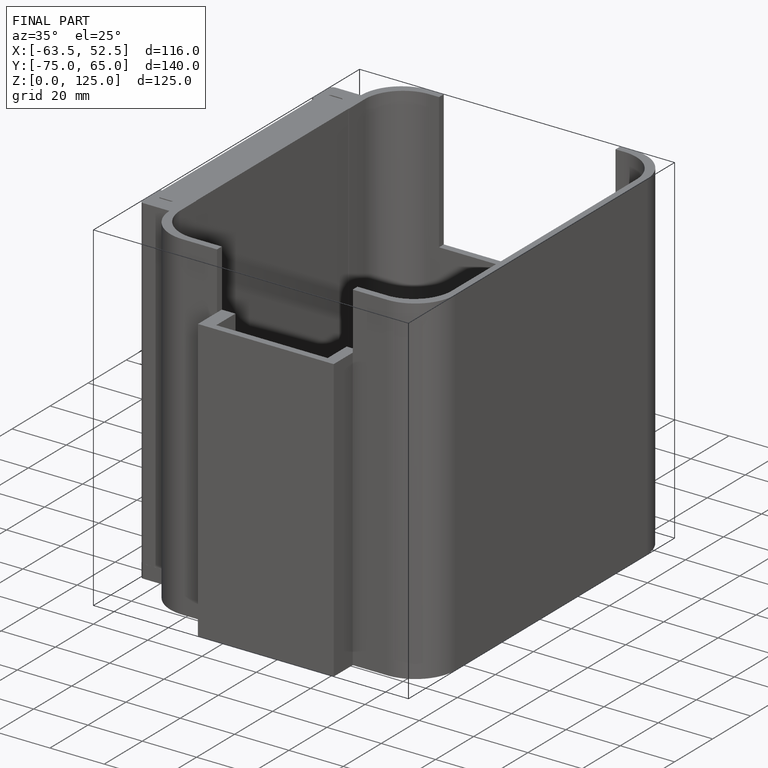
[diagram: finished part — iso view with bounding-box wireframe]
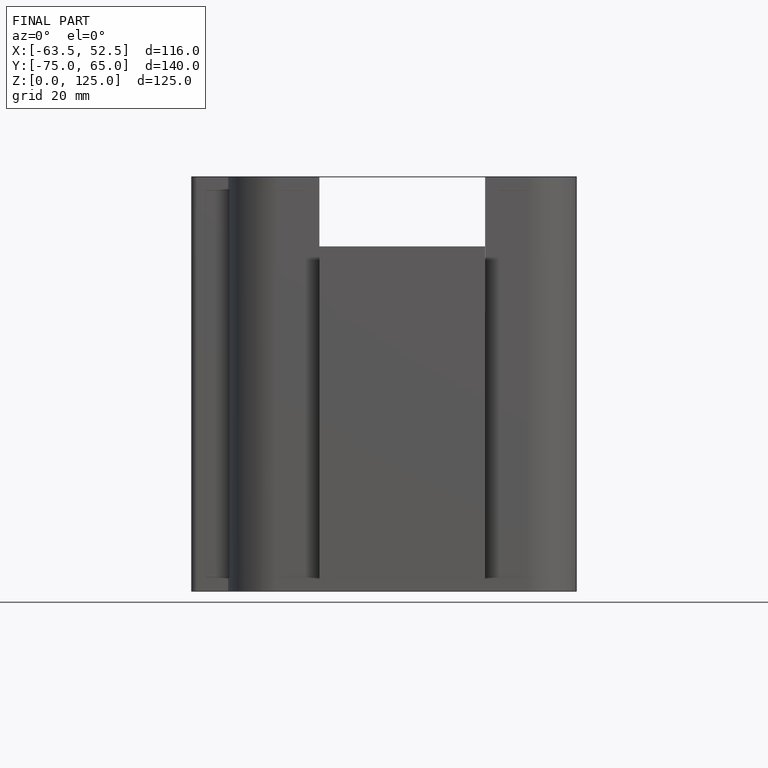
[diagram: finished part — front view with bounding-box wireframe]
